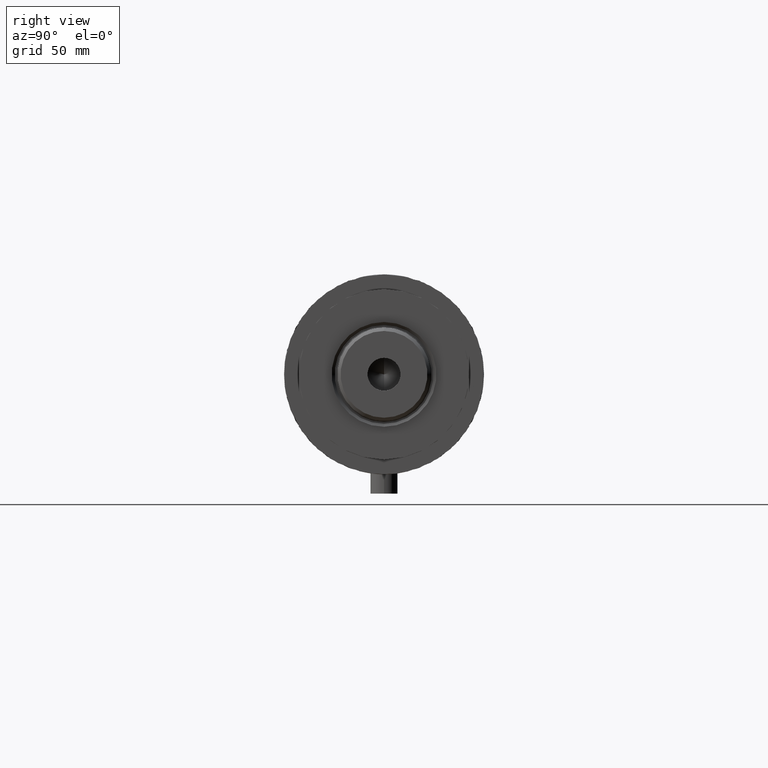
[diagram: clean part render]
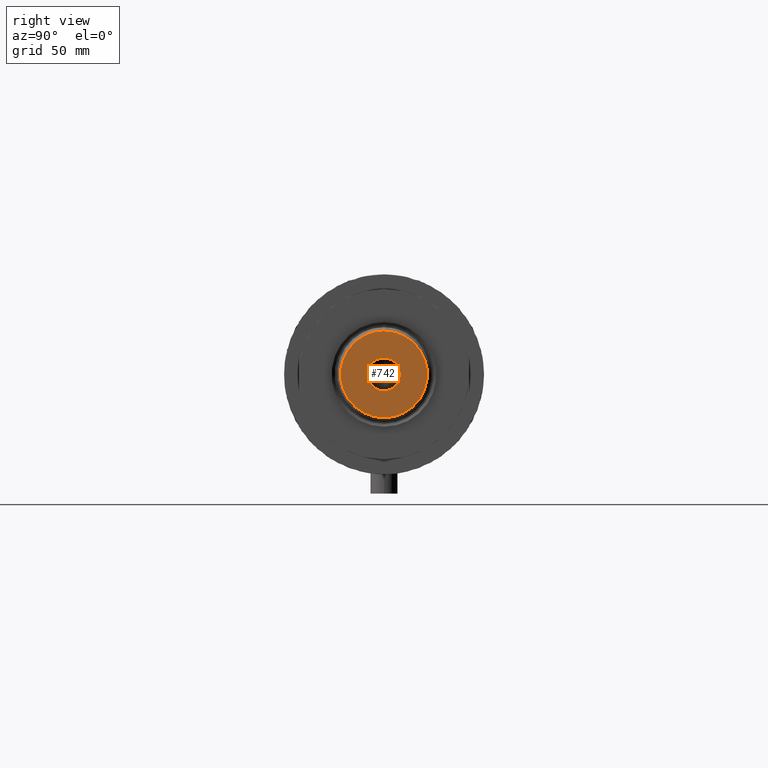
[diagram: same view with one face highlighted and labeled with its STEP entity id]
A machine part, right view. The second image highlights one B-rep face of the part: STEP entity #742.
In plain terms, the highlighted planar face has unit normal (1, 0, -0).
Its self-contained STEP definition (entity closure, byte-faithful):
#23 = DIRECTION ( 'NONE',  ( 0.000000000000000000, 0.000000000000000000, 1.000000000000000000 ) ) ;
#142 = CARTESIAN_POINT ( 'NONE',  ( 0.000000000000000000, 0.000000000000000000, 253.3000000000000114 ) ) ;
#160 = EDGE_CURVE ( 'NONE', #2524, #1690, #2718, .T. ) ;
#322 = ORIENTED_EDGE ( 'NONE', *, *, #1747, .F. ) ;
#742 = ADVANCED_FACE ( 'NONE', ( #3268, #877 ), #1193, .T. ) ;
#793 = ORIENTED_EDGE ( 'NONE', *, *, #2180, .F. ) ;
#877 = FACE_BOUND ( 'NONE', #881, .T. ) ;
#881 = EDGE_LOOP ( 'NONE', ( #793, #322 ) ) ;
#936 = EDGE_CURVE ( 'NONE', #1690, #2524, #4292, .T. ) ;
#1028 = CARTESIAN_POINT ( 'NONE',  ( 19.10000000000006182, 2.424800662311762954E-15, 253.3000000000000114 ) ) ;
#1193 = PLANE ( 'NONE',  #1371 ) ;
#1284 = DIRECTION ( 'NONE',  ( 1.000000000000000000, 0.000000000000000000, 0.000000000000000000 ) ) ;
#1285 = ORIENTED_EDGE ( 'NONE', *, *, #160, .T. ) ;
#1371 = AXIS2_PLACEMENT_3D ( 'NONE', #4314, #2246, #2295 ) ;
#1448 = AXIS2_PLACEMENT_3D ( 'NONE', #2027, #2342, #1284 ) ;
#1458 = AXIS2_PLACEMENT_3D ( 'NONE', #3486, #2836, #2084 ) ;
#1690 = VERTEX_POINT ( 'NONE', #1028 ) ;
#1730 = CARTESIAN_POINT ( 'NONE',  ( 7.249999999999999112, 0.000000000000000000, 253.3000000000000114 ) ) ;
#1747 = EDGE_CURVE ( 'NONE', #3814, #2296, #2112, .T. ) ;
#1810 = CARTESIAN_POINT ( 'NONE',  ( -7.249999999999999112, 8.878689293818310074E-16, 253.3000000000000114 ) ) ;
#2027 = CARTESIAN_POINT ( 'NONE',  ( 0.000000000000000000, 0.000000000000000000, 253.3000000000000114 ) ) ;
#2080 = CARTESIAN_POINT ( 'NONE',  ( -19.10000000000006182, 0.000000000000000000, 253.3000000000000114 ) ) ;
#2084 = DIRECTION ( 'NONE',  ( 1.000000000000000000, 0.000000000000000000, 0.000000000000000000 ) ) ;
#2112 = CIRCLE ( 'NONE', #1458, 7.249999999999999112 ) ;
#2180 = EDGE_CURVE ( 'NONE', #2296, #3814, #3230, .T. ) ;
#2246 = DIRECTION ( 'NONE',  ( 0.000000000000000000, 0.000000000000000000, 1.000000000000000000 ) ) ;
#2295 = DIRECTION ( 'NONE',  ( 1.000000000000000000, 0.000000000000000000, -0.000000000000000000 ) ) ;
#2296 = VERTEX_POINT ( 'NONE', #1730 ) ;
#2342 = DIRECTION ( 'NONE',  ( 0.000000000000000000, 0.000000000000000000, 1.000000000000000000 ) ) ;
#2458 = EDGE_LOOP ( 'NONE', ( #1285, #3596 ) ) ;
#2524 = VERTEX_POINT ( 'NONE', #2080 ) ;
#2713 = DIRECTION ( 'NONE',  ( -0.000000000000000000, -0.000000000000000000, 1.000000000000000000 ) ) ;
#2718 = CIRCLE ( 'NONE', #3499, 19.10000000000006182 ) ;
#2836 = DIRECTION ( 'NONE',  ( -0.000000000000000000, -0.000000000000000000, 1.000000000000000000 ) ) ;
#2865 = DIRECTION ( 'NONE',  ( 1.000000000000000000, 0.000000000000000000, 0.000000000000000000 ) ) ;
#3206 = CARTESIAN_POINT ( 'NONE',  ( 0.000000000000000000, 0.000000000000000000, 253.3000000000000114 ) ) ;
#3230 = CIRCLE ( 'NONE', #3949, 7.249999999999999112 ) ;
#3268 = FACE_OUTER_BOUND ( 'NONE', #2458, .T. ) ;
#3359 = DIRECTION ( 'NONE',  ( 1.000000000000000000, 0.000000000000000000, 0.000000000000000000 ) ) ;
#3486 = CARTESIAN_POINT ( 'NONE',  ( 0.000000000000000000, 0.000000000000000000, 253.3000000000000114 ) ) ;
#3499 = AXIS2_PLACEMENT_3D ( 'NONE', #3206, #23, #2865 ) ;
#3596 = ORIENTED_EDGE ( 'NONE', *, *, #936, .T. ) ;
#3814 = VERTEX_POINT ( 'NONE', #1810 ) ;
#3949 = AXIS2_PLACEMENT_3D ( 'NONE', #142, #2713, #3359 ) ;
#4292 = CIRCLE ( 'NONE', #1448, 19.10000000000006182 ) ;
#4314 = CARTESIAN_POINT ( 'NONE',  ( 0.000000000000000000, 0.000000000000000000, 253.3000000000000114 ) ) ;